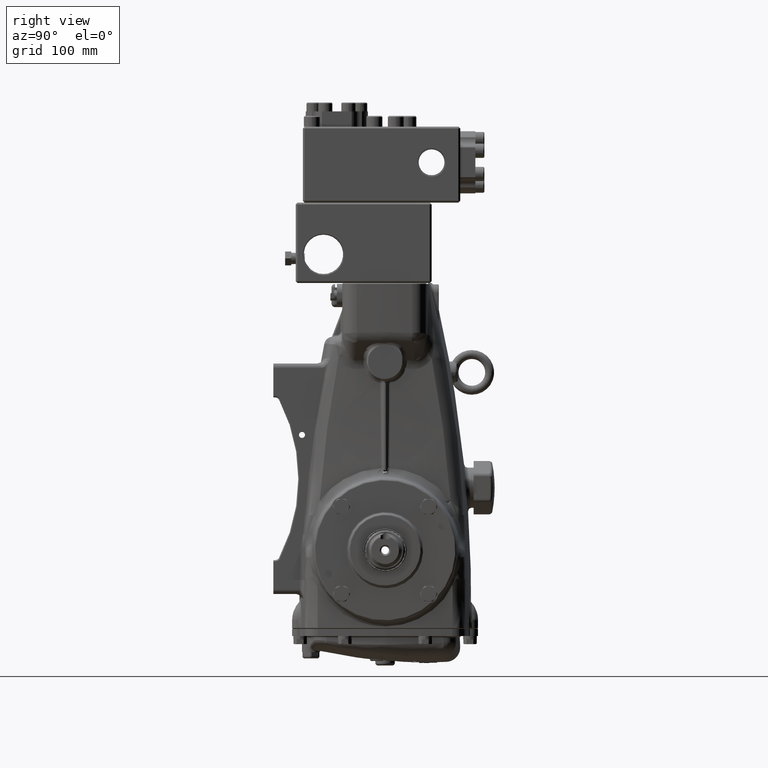
[diagram: clean part render]
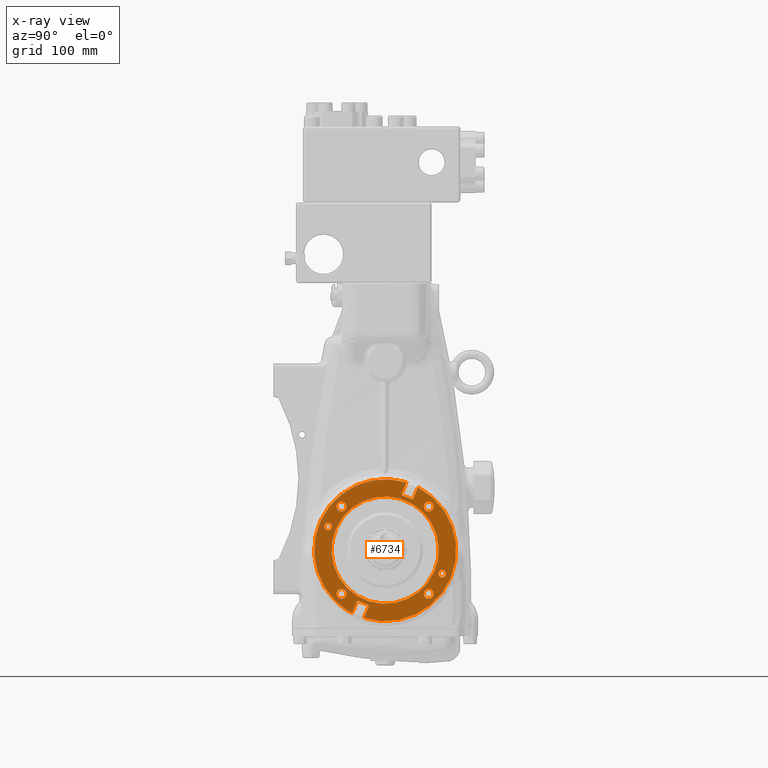
[diagram: x-ray — body ghosted, one internal face saturated and labeled with its STEP entity id]
A machine part, right view, then the same camera in x-ray: the body is ghosted and one INTERNAL B-rep face — a face not visible from any outside direction — is saturated and labeled: STEP entity #6734.
In plain terms, the highlighted planar face has unit normal (1, 0, -0).
Its self-contained STEP definition (entity closure, byte-faithful):
#228 = DIRECTION ( 'NONE',  ( 0.0000000000000000000, 0.7071067811865492381, 0.7071067811865457964 ) ) ;
#783 = AXIS2_PLACEMENT_3D ( 'NONE', #101988, #18125, #55427 ) ;
#1411 = EDGE_LOOP ( 'NONE', ( #43029, #44433 ) ) ;
#1978 = DIRECTION ( 'NONE',  ( 0.0000000000000000000, 0.7071067811865479058, 0.7071067811865471286 ) ) ;
#2516 = CARTESIAN_POINT ( 'NONE',  ( -4.931102362204725864, -0.8090783965955848922, -2.474542559689927312 ) ) ;
#3113 = LINE ( 'NONE', #40413, #114216 ) ;
#3145 = DIRECTION ( 'NONE',  ( 0.0000000000000000000, 0.7071067811865486830, 0.7071067811865461294 ) ) ;
#3190 = CARTESIAN_POINT ( 'NONE',  ( -4.931102362204724976, -2.509751485955854733, 1.039573103668955278 ) ) ;
#3841 = CARTESIAN_POINT ( 'NONE',  ( -4.931102362204725864, -2.073994299149522380, -2.073994299149516607 ) ) ;
#4307 = DIRECTION ( 'NONE',  ( 0.0000000000000000000, 0.7071067811865484609, 0.7071067811865464625 ) ) ;
#4954 = AXIS2_PLACEMENT_3D ( 'NONE', #75679, #113047, #29206 ) ;
#5178 = EDGE_CURVE ( 'NONE', #111150, #69822, #45901, .T. ) ;
#5197 = LINE ( 'NONE', #42502, #22177 ) ;
#5872 = EDGE_CURVE ( 'NONE', #118018, #104416, #21510, .T. ) ;
#6051 = ORIENTED_EDGE ( 'NONE', *, *, #107782, .T. ) ;
#6397 = CARTESIAN_POINT ( 'NONE',  ( -4.931102362204725864, 1.148533022820910743, 2.251549478921818004 ) ) ;
#6423 = CARTESIAN_POINT ( 'NONE',  ( -4.931102362204724976, -2.393162383609034105, 0.9229840013221340955 ) ) ;
#6563 = VERTEX_POINT ( 'NONE', #95311 ) ;
#6591 = ORIENTED_EDGE ( 'NONE', *, *, #5178, .F. ) ;
#6641 = VERTEX_POINT ( 'NONE', #99984 ) ;
#6734 = ADVANCED_FACE ( 'NONE', ( #92591, #8781, #46085, #83396, #120770, #36920, #74199, #111587 ), #27739, .T. ) ;
#6859 = CARTESIAN_POINT ( 'NONE',  ( -4.931102362204725864, 0.8090783965955871126, 2.474542559689928201 ) ) ;
#8275 = DIRECTION ( 'NONE',  ( 1.000000000000000000, 1.279769191153750031E-16, -9.737501798821864473E-31 ) ) ;
#8694 = DIRECTION ( 'NONE',  ( 1.000000000000000000, 1.279769191153750031E-16, -9.737501798821864473E-31 ) ) ;
#8781 = FACE_BOUND ( 'NONE', #25079, .T. ) ;
#9865 = ORIENTED_EDGE ( 'NONE', *, *, #17170, .F. ) ;
#9874 = CARTESIAN_POINT ( 'NONE',  ( -4.931102362204725864, -2.213188547414590701, -2.213188547414584484 ) ) ;
#9876 = VERTEX_POINT ( 'NONE', #35911 ) ;
#11562 = VERTEX_POINT ( 'NONE', #108940 ) ;
#12033 = VECTOR ( 'NONE', #58491, 39.37007874015748143 ) ;
#12211 = EDGE_CURVE ( 'NONE', #111008, #45612, #105036, .T. ) ;
#12770 = CIRCLE ( 'NONE', #96777, 0.2165354330708663400 ) ;
#13170 = DIRECTION ( 'NONE',  ( 0.0000000000000000000, 0.7071067811865481278, 0.7071067811865469066 ) ) ;
#13553 = ORIENTED_EDGE ( 'NONE', *, *, #53741, .F. ) ;
#13726 = CARTESIAN_POINT ( 'NONE',  ( -4.931102362204725864, 1.498447863607280883, 2.897420339543491874 ) ) ;
#13910 = CARTESIAN_POINT ( 'NONE',  ( -4.931102362204732081, -1.475103029729603943, -2.738181951372339551 ) ) ;
#14528 = DIRECTION ( 'NONE',  ( 1.000000000000000000, 1.279769191153750031E-16, -9.737501798821864473E-31 ) ) ;
#16198 = ORIENTED_EDGE ( 'NONE', *, *, #23382, .F. ) ;
#16264 = AXIS2_PLACEMENT_3D ( 'NONE', #2516, #39831, #77139 ) ;
#16628 = EDGE_CURVE ( 'NONE', #104371, #93781, #58648, .T. ) ;
#16686 = DIRECTION ( 'NONE',  ( 0.0000000000000000000, 0.7071067811865486830, 0.7071067811865461294 ) ) ;
#17170 = EDGE_CURVE ( 'NONE', #58624, #9876, #3113, .T. ) ;
#17698 = CIRCLE ( 'NONE', #86032, 0.2165354330708661734 ) ;
#17946 = EDGE_CURVE ( 'NONE', #64349, #45369, #78034, .T. ) ;
#18036 = VERTEX_POINT ( 'NONE', #67958 ) ;
#18125 = DIRECTION ( 'NONE',  ( 1.000000000000000000, 1.279769191153750031E-16, -9.737501798821864473E-31 ) ) ;
#18239 = CIRCLE ( 'NONE', #86584, 0.1648818897637790715 ) ;
#18252 = VERTEX_POINT ( 'NONE', #78185 ) ;
#18552 = DIRECTION ( 'NONE',  ( -9.049334734184335376E-17, 0.7071067811865484609, 0.7071067811865465735 ) ) ;
#20215 = DIRECTION ( 'NONE',  ( 1.000000000000000000, 1.279769191153750031E-16, -9.737501798821864473E-31 ) ) ;
#20664 = CIRCLE ( 'NONE', #89024, 0.03937007874015753528 ) ;
#20756 = CIRCLE ( 'NONE', #89126, 0.1648818897637790715 ) ;
#21198 = CARTESIAN_POINT ( 'NONE',  ( -4.931102362204725864, -0.7799504158693069122, -2.404221393576003951 ) ) ;
#21346 = AXIS2_PLACEMENT_3D ( 'NONE', #3190, #40487, #77790 ) ;
#21510 = CIRCLE ( 'NONE', #21346, 0.1648818897637790715 ) ;
#21686 = ORIENTED_EDGE ( 'NONE', *, *, #48549, .T. ) ;
#21972 = CARTESIAN_POINT ( 'NONE',  ( -4.931102362204725864, -1.920880626057946960, -1.920880626057941409 ) ) ;
#22177 = VECTOR ( 'NONE', #79806, 39.37007874015748854 ) ;
#23382 = EDGE_CURVE ( 'NONE', #78524, #18252, #97541, .T. ) ;
#23746 = AXIS2_PLACEMENT_3D ( 'NONE', #13910, #51192, #88537 ) ;
#23872 = ORIENTED_EDGE ( 'NONE', *, *, #51810, .T. ) ;
#24250 = CARTESIAN_POINT ( 'NONE',  ( -4.931102362204732970, 1.475103029729603499, 2.738181951372341327 ) ) ;
#25079 = EDGE_LOOP ( 'NONE', ( #80794, #112636 ) ) ;
#25688 = CIRCLE ( 'NONE', #62770, 0.2165354330708663400 ) ;
#26587 = DIRECTION ( 'NONE',  ( 1.000000000000000000, 1.279769191153750031E-16, -9.737501798821864473E-31 ) ) ;
#27243 = EDGE_CURVE ( 'NONE', #32699, #103064, #25688, .T. ) ;
#27466 = DIRECTION ( 'NONE',  ( 0.0000000000000000000, 0.7071067811865484609, 0.7071067811865465735 ) ) ;
#27709 = ORIENTED_EDGE ( 'NONE', *, *, #17946, .F. ) ;
#27739 = PLANE ( 'NONE',  #85520 ) ;
#28490 = CIRCLE ( 'NONE', #44115, 0.07611508171717662474 ) ;
#29206 = DIRECTION ( 'NONE',  ( 0.0000000000000000000, 0.7071067811865486830, 0.7071067811865461294 ) ) ;
#29310 = ORIENTED_EDGE ( 'NONE', *, *, #64053, .F. ) ;
#29775 = CARTESIAN_POINT ( 'NONE',  ( -4.931102362204725864, 1.148533022820910743, 2.251549478921818004 ) ) ;
#30059 = LINE ( 'NONE', #67354, #99631 ) ;
#31356 = DIRECTION ( 'NONE',  ( 1.000000000000000000, 1.279769191153750031E-16, -9.737501798821864473E-31 ) ) ;
#31654 = DIRECTION ( 'NONE',  ( 1.000000000000000000, 1.279769191153750031E-16, -9.737501798821864473E-31 ) ) ;
#32699 = VERTEX_POINT ( 'NONE', #104152 ) ;
#33170 = ORIENTED_EDGE ( 'NONE', *, *, #92294, .F. ) ;
#33447 = DIRECTION ( 'NONE',  ( 1.000000000000000000, 1.279769191153750031E-16, -9.737501798821864473E-31 ) ) ;
#34570 = CIRCLE ( 'NONE', #102966, 0.03937007874015743814 ) ;
#34646 = AXIS2_PLACEMENT_3D ( 'NONE', #115194, #31356, #68651 ) ;
#34986 = CARTESIAN_POINT ( 'NONE',  ( -4.931102362204725864, -0.9314929267512803701, -2.988097726016758493 ) ) ;
#35143 = CARTESIAN_POINT ( 'NONE',  ( -4.931102362204725864, 2.073994299149522824, 2.073994299149517051 ) ) ;
#35469 = EDGE_CURVE ( 'NONE', #45369, #64349, #17698, .T. ) ;
#35911 = CARTESIAN_POINT ( 'NONE',  ( -4.931102362204725864, -1.438729819788214792, -2.753248228237107131 ) ) ;
#36388 = ORIENTED_EDGE ( 'NONE', *, *, #44830, .F. ) ;
#36620 = CARTESIAN_POINT ( 'NONE',  ( -4.931102362204725864, 1.920880626057941409, -1.920880626057947405 ) ) ;
#36920 = FACE_BOUND ( 'NONE', #94811, .T. ) ;
#38158 = ORIENTED_EDGE ( 'NONE', *, *, #45131, .T. ) ;
#39831 = DIRECTION ( 'NONE',  ( 1.000000000000000000, 1.279769191153750031E-16, -9.737501798821864473E-31 ) ) ;
#40413 = CARTESIAN_POINT ( 'NONE',  ( -4.931102362204725864, -2.681562252703414639, -5.753711143538127182 ) ) ;
#40449 = EDGE_CURVE ( 'NONE', #103019, #11562, #94270, .T. ) ;
#40487 = DIRECTION ( 'NONE',  ( 1.000000000000000000, 1.279769191153750031E-16, -9.737501798821864473E-31 ) ) ;
#41570 = EDGE_CURVE ( 'NONE', #57788, #111008, #68968, .T. ) ;
#42005 = AXIS2_PLACEMENT_3D ( 'NONE', #92096, #8275, #45567 ) ;
#42381 = AXIS2_PLACEMENT_3D ( 'NONE', #110396, #26587, #63885 ) ;
#42502 = CARTESIAN_POINT ( 'NONE',  ( -4.931102362204725864, 0.9892229244278322176, 3.108348215650234003 ) ) ;
#42791 = EDGE_LOOP ( 'NONE', ( #67604, #13553 ) ) ;
#43029 = ORIENTED_EDGE ( 'NONE', *, *, #16628, .F. ) ;
#43547 = VERTEX_POINT ( 'NONE', #108096 ) ;
#43780 = CARTESIAN_POINT ( 'NONE',  ( -4.931102362204725864, 2.393162383609033217, -0.9229840013221337625 ) ) ;
#44115 = AXIS2_PLACEMENT_3D ( 'NONE', #45528, #82847, #120224 ) ;
#44157 = DIRECTION ( 'NONE',  ( 1.000000000000000000, 1.279769191153750031E-16, -9.737501798821864473E-31 ) ) ;
#44433 = ORIENTED_EDGE ( 'NONE', *, *, #44496, .F. ) ;
#44496 = EDGE_CURVE ( 'NONE', #93781, #104371, #12770, .T. ) ;
#44830 = EDGE_CURVE ( 'NONE', #103064, #32699, #53513, .T. ) ;
#45131 = EDGE_CURVE ( 'NONE', #45169, #104789, #77011, .T. ) ;
#45169 = VERTEX_POINT ( 'NONE', #47305 ) ;
#45347 = CARTESIAN_POINT ( 'NONE',  ( -4.931102362204725864, 2.073994299149517051, -1.767766952966372207 ) ) ;
#45369 = VERTEX_POINT ( 'NONE', #3841 ) ;
#45528 = CARTESIAN_POINT ( 'NONE',  ( -4.931102362204725864, -1.177661003547190166, -2.321870645035740921 ) ) ;
#45567 = DIRECTION ( 'NONE',  ( 0.0000000000000000000, 0.7071067811865484609, 0.7071067811865464625 ) ) ;
#45612 = VERTEX_POINT ( 'NONE', #120062 ) ;
#45901 = CIRCLE ( 'NONE', #4954, 0.2165354330708661734 ) ;
#46002 = DIRECTION ( 'NONE',  ( 0.0000000000000000000, 0.7071067811865479058, 0.7071067811865471286 ) ) ;
#46085 = FACE_BOUND ( 'NONE', #71762, .T. ) ;
#46717 = CARTESIAN_POINT ( 'NONE',  ( -4.931102362204725864, 0.8931316706673750883, 2.979242381208618617 ) ) ;
#47305 = CARTESIAN_POINT ( 'NONE',  ( -4.931102362204725864, 0.9295048806087649051, 2.964176104343851037 ) ) ;
#47473 = CIRCLE ( 'NONE', #63136, 2.362204724409449064 ) ;
#48460 = CARTESIAN_POINT ( 'NONE',  ( -4.931102362204725864, 2.509751485955853845, -1.039573103668955056 ) ) ;
#48506 = ORIENTED_EDGE ( 'NONE', *, *, #40449, .T. ) ;
#48549 = EDGE_CURVE ( 'NONE', #109154, #68097, #108092, .T. ) ;
#49062 = CARTESIAN_POINT ( 'NONE',  ( -4.931102362204725864, -0.7387572304816614199, -2.503670540416205625 ) ) ;
#49602 = CARTESIAN_POINT ( 'NONE',  ( -4.931102362204725864, 1.920880626057947405, 1.920880626057941853 ) ) ;
#50753 = CARTESIAN_POINT ( 'NONE',  ( -4.931102362204725864, -1.259615345623801372E-18, 2.958535915340191725E-16 ) ) ;
#51007 = DIRECTION ( 'NONE',  ( -4.897464667058031563E-17, 0.3826834323650896708, 0.9238795325112867385 ) ) ;
#51192 = DIRECTION ( 'NONE',  ( 1.000000000000000000, 1.279769191153750031E-16, -9.737501798821864473E-31 ) ) ;
#51810 = EDGE_CURVE ( 'NONE', #11562, #18252, #20664, .T. ) ;
#51812 = DIRECTION ( 'NONE',  ( 0.0000000000000000000, 0.7071067811865484609, 0.7071067811865464625 ) ) ;
#53393 = VERTEX_POINT ( 'NONE', #6397 ) ;
#53497 = EDGE_CURVE ( 'NONE', #53393, #78524, #95165, .T. ) ;
#53513 = CIRCLE ( 'NONE', #783, 0.2165354330708663400 ) ;
#53741 = EDGE_CURVE ( 'NONE', #43547, #117259, #87354, .T. ) ;
#55316 = AXIS2_PLACEMENT_3D ( 'NONE', #50753, #88098, #4307 ) ;
#55427 = DIRECTION ( 'NONE',  ( 0.0000000000000000000, 0.7071067811865481278, 0.7071067811865469066 ) ) ;
#55663 = AXIS2_PLACEMENT_3D ( 'NONE', #6859, #44157, #81479 ) ;
#56952 = ORIENTED_EDGE ( 'NONE', *, *, #41570, .F. ) ;
#57531 = DIRECTION ( 'NONE',  ( 0.0000000000000000000, 0.7071067811865492381, 0.7071067811865457964 ) ) ;
#57579 = VECTOR ( 'NONE', #67062, 39.37007874015748854 ) ;
#57763 = EDGE_CURVE ( 'NONE', #120621, #6641, #113075, .T. ) ;
#57788 = VERTEX_POINT ( 'NONE', #49062 ) ;
#57855 = ORIENTED_EDGE ( 'NONE', *, *, #112032, .F. ) ;
#58058 = CARTESIAN_POINT ( 'NONE',  ( -4.931102362204725864, 1.247982169661112639, 2.292742664309463052 ) ) ;
#58491 = DIRECTION ( 'NONE',  ( 1.182352562045478222E-16, -0.9238795325112865164, 0.3826834323650902259 ) ) ;
#58624 = VERTEX_POINT ( 'NONE', #75179 ) ;
#58648 = CIRCLE ( 'NONE', #72623, 0.2165354330708663400 ) ;
#59263 = DIRECTION ( 'NONE',  ( 1.000000000000000000, 1.279769191153750031E-16, -9.737501798821864473E-31 ) ) ;
#59634 = CARTESIAN_POINT ( 'NONE',  ( -4.931102362204725864, -1.920880626057942520, 1.920880626057946960 ) ) ;
#60200 = CARTESIAN_POINT ( 'NONE',  ( -4.931102362204725864, 1.767766952966371985, 1.767766952966366878 ) ) ;
#60249 = AXIS2_PLACEMENT_3D ( 'NONE', #48460, #85776, #1978 ) ;
#60307 = VECTOR ( 'NONE', #51007, 39.37007874015748854 ) ;
#61382 = CARTESIAN_POINT ( 'NONE',  ( -4.931102362204725864, -2.073994299149517939, 1.767766952966371541 ) ) ;
#61563 = DIRECTION ( 'NONE',  ( 1.000000000000000000, 1.279769191153750031E-16, -9.737501798821864473E-31 ) ) ;
#61688 = EDGE_CURVE ( 'NONE', #68097, #9876, #76506, .T. ) ;
#62770 = AXIS2_PLACEMENT_3D ( 'NONE', #36620, #73907, #111292 ) ;
#63136 = AXIS2_PLACEMENT_3D ( 'NONE', #73917, #111300, #27466 ) ;
#63161 = CARTESIAN_POINT ( 'NONE',  ( -4.931102362204725864, -1.920880626057946960, -1.920880626057941409 ) ) ;
#63885 = DIRECTION ( 'NONE',  ( 0.0000000000000000000, -0.7071067811865475727, -0.7071067811865475727 ) ) ;
#64053 = EDGE_CURVE ( 'NONE', #18036, #53393, #113613, .T. ) ;
#64347 = EDGE_CURVE ( 'NONE', #79325, #18036, #108443, .T. ) ;
#64349 = VERTEX_POINT ( 'NONE', #118831 ) ;
#64586 = CARTESIAN_POINT ( 'NONE',  ( -4.931102362204725864, 0.9314929267512829236, 2.988097726016758493 ) ) ;
#65045 = CARTESIAN_POINT ( 'NONE',  ( -4.931102362204725864, 2.227107972241097578, 2.227107972241091804 ) ) ;
#66628 = AXIS2_PLACEMENT_3D ( 'NONE', #49602, #86933, #3145 ) ;
#67062 = DIRECTION ( 'NONE',  ( -1.182352562045477236E-16, 0.9238795325112864054, -0.3826834323650905034 ) ) ;
#67354 = CARTESIAN_POINT ( 'NONE',  ( -4.931102362204725864, -2.172337313523960312, -5.964639019644872420 ) ) ;
#67604 = ORIENTED_EDGE ( 'NONE', *, *, #100499, .F. ) ;
#67958 = CARTESIAN_POINT ( 'NONE',  ( -4.931102362204725864, 0.7799504158693084666, 2.404221393576003951 ) ) ;
#68097 = VERTEX_POINT ( 'NONE', #72827 ) ;
#68651 = DIRECTION ( 'NONE',  ( 0.0000000000000000000, 0.7071067811865484609, 0.7071067811865465735 ) ) ;
#68946 = DIRECTION ( 'NONE',  ( 0.0000000000000000000, 0.7071067811865481278, 0.7071067811865469066 ) ) ;
#68968 = CIRCLE ( 'NONE', #16264, 0.07611508171717681903 ) ;
#69822 = VERTEX_POINT ( 'NONE', #60200 ) ;
#70617 = CARTESIAN_POINT ( 'NONE',  ( -4.931102362204725864, -1.767766952966366878, 2.073994299149521936 ) ) ;
#70729 = DIRECTION ( 'NONE',  ( 0.0000000000000000000, 0.7071067811865479058, 0.7071067811865471286 ) ) ;
#71365 = EDGE_LOOP ( 'NONE', ( #91609, #21686, #109435, #9865, #99867, #103371, #56952, #33170, #6051, #48506, #23872, #16198, #98363, #29310, #99394, #57855, #38158 ) ) ;
#71762 = EDGE_LOOP ( 'NONE', ( #77294, #107367 ) ) ;
#72411 = ORIENTED_EDGE ( 'NONE', *, *, #35469, .F. ) ;
#72623 = AXIS2_PLACEMENT_3D ( 'NONE', #59634, #96984, #13170 ) ;
#72827 = CARTESIAN_POINT ( 'NONE',  ( -4.931102362204732081, -1.454239199781433678, -2.771569130047677465 ) ) ;
#73136 = AXIS2_PLACEMENT_3D ( 'NONE', #63161, #100511, #16686 ) ;
#73907 = DIRECTION ( 'NONE',  ( 1.000000000000000000, 1.279769191153750031E-16, -9.737501798821864473E-31 ) ) ;
#73917 = CARTESIAN_POINT ( 'NONE',  ( -4.931102362204725864, -1.259615345623786157E-18, 2.958535915340191725E-16 ) ) ;
#74199 = FACE_BOUND ( 'NONE', #1411, .T. ) ;
#75179 = CARTESIAN_POINT ( 'NONE',  ( -4.931102362204725864, -1.247982169661113083, -2.292742664309463052 ) ) ;
#75679 = CARTESIAN_POINT ( 'NONE',  ( -4.931102362204725864, 1.920880626057947405, 1.920880626057941853 ) ) ;
#76409 = EDGE_CURVE ( 'NONE', #69822, #111150, #103791, .T. ) ;
#76506 = CIRCLE ( 'NONE', #23746, 0.03937007874015753528 ) ;
#77011 = CIRCLE ( 'NONE', #92674, 0.03937007874015743814 ) ;
#77139 = DIRECTION ( 'NONE',  ( 0.0000000000000000000, -0.7071067811865465735, -0.7071067811865484609 ) ) ;
#77294 = ORIENTED_EDGE ( 'NONE', *, *, #57763, .F. ) ;
#77710 = DIRECTION ( 'NONE',  ( 4.897464667058037726E-17, -0.3826834323650905034, -0.9238795325112864054 ) ) ;
#77790 = DIRECTION ( 'NONE',  ( 0.0000000000000000000, 0.7071067811865479058, 0.7071067811865471286 ) ) ;
#78034 = CIRCLE ( 'NONE', #73136, 0.2165354330708661734 ) ;
#78185 = CARTESIAN_POINT ( 'NONE',  ( -4.931102362204725864, 1.438729819788213904, 2.753248228237109352 ) ) ;
#78524 = VERTEX_POINT ( 'NONE', #58058 ) ;
#79325 = VERTEX_POINT ( 'NONE', #86966 ) ;
#79806 = DIRECTION ( 'NONE',  ( 4.897464667058037726E-17, -0.3826834323650908920, -0.9238795325112861834 ) ) ;
#80794 = ORIENTED_EDGE ( 'NONE', *, *, #5872, .F. ) ;
#81441 = EDGE_CURVE ( 'NONE', #6641, #120621, #18239, .T. ) ;
#81479 = DIRECTION ( 'NONE',  ( 0.0000000000000000000, -0.7071067811865493491, -0.7071067811865456854 ) ) ;
#82847 = DIRECTION ( 'NONE',  ( 1.000000000000000000, 1.279769191153750031E-16, -9.737501798821864473E-31 ) ) ;
#83396 = FACE_BOUND ( 'NONE', #118364, .T. ) ;
#84035 = DIRECTION ( 'NONE',  ( 1.000000000000000000, 1.279769191153750031E-16, -9.737501798821864473E-31 ) ) ;
#84292 = DIRECTION ( 'NONE',  ( 0.0000000000000000000, 0.7071067811865510144, 0.7071067811865440200 ) ) ;
#84432 = ORIENTED_EDGE ( 'NONE', *, *, #27243, .F. ) ;
#85520 = AXIS2_PLACEMENT_3D ( 'NONE', #65045, #102383, #18552 ) ;
#85776 = DIRECTION ( 'NONE',  ( 1.000000000000000000, 1.279769191153750031E-16, -9.737501798821864473E-31 ) ) ;
#86032 = AXIS2_PLACEMENT_3D ( 'NONE', #21972, #59263, #96612 ) ;
#86584 = AXIS2_PLACEMENT_3D ( 'NONE', #117288, #33447, #70729 ) ;
#86933 = DIRECTION ( 'NONE',  ( 1.000000000000000000, 1.279769191153750031E-16, -9.737501798821864473E-31 ) ) ;
#86966 = CARTESIAN_POINT ( 'NONE',  ( -4.931102362204725864, 0.7387572304816631963, 2.503670540416206070 ) ) ;
#87354 = CIRCLE ( 'NONE', #34646, 2.362204724409449064 ) ;
#87583 = EDGE_CURVE ( 'NONE', #104416, #118018, #20756, .T. ) ;
#88098 = DIRECTION ( 'NONE',  ( 1.000000000000000000, 1.279769191153750031E-16, -9.737501798821864473E-31 ) ) ;
#88537 = DIRECTION ( 'NONE',  ( 0.0000000000000000000, 0.7071067811865510144, 0.7071067811865440200 ) ) ;
#89024 = AXIS2_PLACEMENT_3D ( 'NONE', #24250, #61563, #84292 ) ;
#89126 = AXIS2_PLACEMENT_3D ( 'NONE', #92504, #8694, #46002 ) ;
#90686 = CARTESIAN_POINT ( 'NONE',  ( -4.931102362204725864, 1.670330979180823183, 1.670330979180819186 ) ) ;
#91609 = ORIENTED_EDGE ( 'NONE', *, *, #114163, .T. ) ;
#92096 = CARTESIAN_POINT ( 'NONE',  ( -4.931102362204725864, -1.259615345623801372E-18, 2.958535915340191725E-16 ) ) ;
#92294 = EDGE_CURVE ( 'NONE', #6563, #57788, #30059, .T. ) ;
#92504 = CARTESIAN_POINT ( 'NONE',  ( -4.931102362204724976, -2.509751485955854733, 1.039573103668955278 ) ) ;
#92591 = FACE_OUTER_BOUND ( 'NONE', #71365, .T. ) ;
#92674 = AXIS2_PLACEMENT_3D ( 'NONE', #46717, #84035, #228 ) ;
#93781 = VERTEX_POINT ( 'NONE', #61382 ) ;
#94270 = CIRCLE ( 'NONE', #109927, 3.129921259842520342 ) ;
#94797 = CIRCLE ( 'NONE', #42005, 3.129921259842520342 ) ;
#94811 = EDGE_LOOP ( 'NONE', ( #6591, #103329 ) ) ;
#95165 = CIRCLE ( 'NONE', #42381, 0.07611508171717691618 ) ;
#95311 = CARTESIAN_POINT ( 'NONE',  ( -4.931102362204725864, -0.9295048806087625737, -2.964176104343851037 ) ) ;
#96612 = DIRECTION ( 'NONE',  ( 0.0000000000000000000, 0.7071067811865486830, 0.7071067811865461294 ) ) ;
#96636 = CARTESIAN_POINT ( 'NONE',  ( -4.931102362204724976, -2.626340588302675805, 1.156162206015776350 ) ) ;
#96777 = AXIS2_PLACEMENT_3D ( 'NONE', #115503, #31654, #68946 ) ;
#96984 = DIRECTION ( 'NONE',  ( 1.000000000000000000, 1.279769191153750031E-16, -9.737501798821864473E-31 ) ) ;
#97541 = LINE ( 'NONE', #13726, #60307 ) ;
#98339 = CARTESIAN_POINT ( 'NONE',  ( -4.931102362204725864, -1.259615345623801372E-18, 2.958535915340191725E-16 ) ) ;
#98363 = ORIENTED_EDGE ( 'NONE', *, *, #53497, .F. ) ;
#99394 = ORIENTED_EDGE ( 'NONE', *, *, #64347, .F. ) ;
#99631 = VECTOR ( 'NONE', #104723, 39.37007874015748143 ) ;
#99867 = ORIENTED_EDGE ( 'NONE', *, *, #117010, .F. ) ;
#99984 = CARTESIAN_POINT ( 'NONE',  ( -4.931102362204725864, 2.626340588302674917, -1.156162206015776128 ) ) ;
#100499 = EDGE_CURVE ( 'NONE', #117259, #43547, #47473, .T. ) ;
#100511 = DIRECTION ( 'NONE',  ( 1.000000000000000000, 1.279769191153750031E-16, -9.737501798821864473E-31 ) ) ;
#101988 = CARTESIAN_POINT ( 'NONE',  ( -4.931102362204725864, 1.920880626057941409, -1.920880626057947405 ) ) ;
#102383 = DIRECTION ( 'NONE',  ( 1.000000000000000000, 1.279769191153749784E-16, -1.010728034814421376E-30 ) ) ;
#102966 = AXIS2_PLACEMENT_3D ( 'NONE', #104074, #20215, #57531 ) ;
#103019 = VERTEX_POINT ( 'NONE', #34986 ) ;
#103064 = VERTEX_POINT ( 'NONE', #45347 ) ;
#103329 = ORIENTED_EDGE ( 'NONE', *, *, #76409, .F. ) ;
#103371 = ORIENTED_EDGE ( 'NONE', *, *, #12211, .F. ) ;
#103791 = CIRCLE ( 'NONE', #66628, 0.2165354330708661734 ) ;
#104074 = CARTESIAN_POINT ( 'NONE',  ( -4.931102362204725864, -0.8931316706673728678, -2.979242381208618173 ) ) ;
#104152 = CARTESIAN_POINT ( 'NONE',  ( -4.931102362204725864, 1.767766952966365768, -2.073994299149522824 ) ) ;
#104363 = CARTESIAN_POINT ( 'NONE',  ( -4.931102362204725864, -0.7799504158693069122, -2.404221393576003951 ) ) ;
#104371 = VERTEX_POINT ( 'NONE', #70617 ) ;
#104416 = VERTEX_POINT ( 'NONE', #6423 ) ;
#104531 = EDGE_LOOP ( 'NONE', ( #27709, #72411 ) ) ;
#104723 = DIRECTION ( 'NONE',  ( -4.897464667058024783E-17, 0.3826834323650897818, 0.9238795325112867385 ) ) ;
#104789 = VERTEX_POINT ( 'NONE', #64586 ) ;
#105036 = LINE ( 'NONE', #21198, #12033 ) ;
#107367 = ORIENTED_EDGE ( 'NONE', *, *, #81441, .F. ) ;
#107782 = EDGE_CURVE ( 'NONE', #6563, #103019, #34570, .T. ) ;
#108092 = CIRCLE ( 'NONE', #55316, 3.129921259842520342 ) ;
#108096 = CARTESIAN_POINT ( 'NONE',  ( -4.931102362204725864, -1.670330979180823627, -1.670330979180818298 ) ) ;
#108443 = CIRCLE ( 'NONE', #55663, 0.07611508171717672189 ) ;
#108940 = CARTESIAN_POINT ( 'NONE',  ( -4.931102362204732970, 1.454239199781433678, 2.771569130047678353 ) ) ;
#109154 = VERTEX_POINT ( 'NONE', #9874 ) ;
#109435 = ORIENTED_EDGE ( 'NONE', *, *, #61688, .T. ) ;
#109927 = AXIS2_PLACEMENT_3D ( 'NONE', #98339, #14528, #51812 ) ;
#110396 = CARTESIAN_POINT ( 'NONE',  ( -4.931102362204725864, 1.177661003547189278, 2.321870645035741809 ) ) ;
#111008 = VERTEX_POINT ( 'NONE', #104363 ) ;
#111150 = VERTEX_POINT ( 'NONE', #35143 ) ;
#111292 = DIRECTION ( 'NONE',  ( 0.0000000000000000000, 0.7071067811865481278, 0.7071067811865469066 ) ) ;
#111300 = DIRECTION ( 'NONE',  ( 1.000000000000000000, 1.279769191153750031E-16, -9.737501798821864473E-31 ) ) ;
#111587 = FACE_BOUND ( 'NONE', #42791, .T. ) ;
#112032 = EDGE_CURVE ( 'NONE', #45169, #79325, #5197, .T. ) ;
#112636 = ORIENTED_EDGE ( 'NONE', *, *, #87583, .F. ) ;
#113047 = DIRECTION ( 'NONE',  ( 1.000000000000000000, 1.279769191153750031E-16, -9.737501798821864473E-31 ) ) ;
#113075 = CIRCLE ( 'NONE', #60249, 0.1648818897637790715 ) ;
#113613 = LINE ( 'NONE', #29775, #57579 ) ;
#114163 = EDGE_CURVE ( 'NONE', #104789, #109154, #94797, .T. ) ;
#114216 = VECTOR ( 'NONE', #77710, 39.37007874015748854 ) ;
#115194 = CARTESIAN_POINT ( 'NONE',  ( -4.931102362204725864, -1.259615345623786157E-18, 2.958535915340191725E-16 ) ) ;
#115503 = CARTESIAN_POINT ( 'NONE',  ( -4.931102362204725864, -1.920880626057942520, 1.920880626057946960 ) ) ;
#117010 = EDGE_CURVE ( 'NONE', #45612, #58624, #28490, .T. ) ;
#117259 = VERTEX_POINT ( 'NONE', #90686 ) ;
#117288 = CARTESIAN_POINT ( 'NONE',  ( -4.931102362204725864, 2.509751485955853845, -1.039573103668955056 ) ) ;
#118018 = VERTEX_POINT ( 'NONE', #96636 ) ;
#118364 = EDGE_LOOP ( 'NONE', ( #36388, #84432 ) ) ;
#118831 = CARTESIAN_POINT ( 'NONE',  ( -4.931102362204725864, -1.767766952966371319, -1.767766952966366434 ) ) ;
#120062 = CARTESIAN_POINT ( 'NONE',  ( -4.931102362204725864, -1.148533022820911631, -2.251549478921817560 ) ) ;
#120224 = DIRECTION ( 'NONE',  ( 0.0000000000000000000, 0.7071067811865484609, 0.7071067811865465735 ) ) ;
#120621 = VERTEX_POINT ( 'NONE', #43780 ) ;
#120770 = FACE_BOUND ( 'NONE', #104531, .T. ) ;